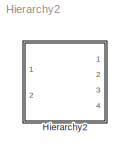
MODEL Hierarchy2
KIND model
CONFIG AbsTol = auto
CONFIG FixedStep = auto
CONFIG MaxStep = auto
CONFIG MinStep = auto
CONFIG RelTol = 1e-3
CONFIG Solver = ode45
CONFIG SolverMode = Auto
CONFIG StartTime = 0.0
CONFIG StopTime = 10.0
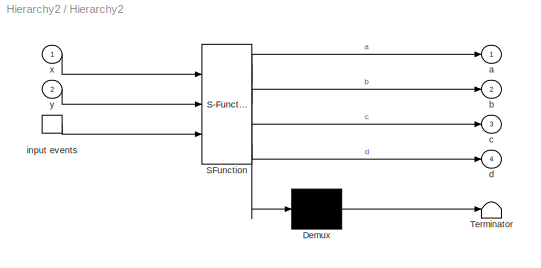
BLOCK [SubSystem] Hierarchy2
  MaskDescription = Stateflow diagram
  MaskDisplay = plot(sf('Private','sfblk','xIcon'),sf('Private','sfblk','yIcon'));text(0.5,0,sf('Private', 'sfblk', 'tIcon'),'HorizontalAl','Center','VerticalAl','Bottom');
  MaskIconFrame = off
  MaskIconOpaque = off
  MaskIconRotate = none
  MaskIconUnits = autoscale
  MaskSelfModifiable = on
  MaskType = Stateflow
  Ports = [2, 4, 0, 1]
  TreatAsAtomicUnit = off
BLOCK [Demux] Hierarchy2/ Demux 
  Outputs = 1
  Ports = [1, 1]
BLOCK [S-Function] Hierarchy2/ SFunction 
  FunctionName = sf_sfun
  PortCounts = [3 5]
  Ports = [3, 5]
  Tag = Stateflow S-Function Hierarchy2 1
BLOCK [Terminator] Hierarchy2/ Terminator 
BLOCK [TriggerPort] Hierarchy2/ input events 
  Ports = [0, 1]
  ShowOutputPort = on
  TriggerType = either
BLOCK [Outport] Hierarchy2/a
BLOCK [Outport] Hierarchy2/b
  Port = 2
BLOCK [Outport] Hierarchy2/c
  Port = 3
BLOCK [Outport] Hierarchy2/d
  Port = 4
BLOCK [Inport] Hierarchy2/x
  PortDimensions = 1
BLOCK [Inport] Hierarchy2/y
  Port = 2
  PortDimensions = 1
LINE Hierarchy2/ Demux :1 -> Hierarchy2/ Terminator :1
LINE Hierarchy2/ SFunction :1 -> Hierarchy2/ Demux :1
LINE Hierarchy2/ SFunction :2 -> Hierarchy2/a:1
LINE Hierarchy2/ SFunction :3 -> Hierarchy2/b:1
LINE Hierarchy2/ SFunction :4 -> Hierarchy2/c:1
LINE Hierarchy2/ SFunction :5 -> Hierarchy2/d:1
LINE Hierarchy2/ input events :1 -> Hierarchy2/ SFunction :3
LINE Hierarchy2/x:1 -> Hierarchy2/ SFunction :1
LINE Hierarchy2/y:1 -> Hierarchy2/ SFunction :2
CHART Hierarchy2 states=35 transitions=50
  STATE_LABEL 'A'
  STATE_LABEL 'A1'
  STATE_LABEL 'A1a/\\nen:a=x+1'
  STATE_LABEL 'A1b/\\nen:a=x+2'
  STATE_LABEL 'A2'
  STATE_LABEL 'A2a/\\nen:a=x+3'
  STATE_LABEL 'A2b/\\nen:a=x+4'
  STATE_LABEL 'A1aA'
  STATE_LABEL 'A1aA2'
  STATE_LABEL 'A1Aa2a'
  STATE_LABEL 'A1aA2b'
  STATE_LABEL 'A1aA1'
  STATE_LABEL 'A1aA1a'
  STATE_LABEL 'A1aA1b'
  STATE_LABEL 'A2aA'
  STATE_LABEL 'A2aA2'
  STATE_LABEL 'A2Aa2a'
  STATE_LABEL 'A2aA2b'
  STATE_LABEL 'A2aA1'
  STATE_LABEL 'A2aA1a'
  STATE_LABEL 'A2aA1b'
  STATE_LABEL 'A3aA'
  STATE_LABEL 'A3aA2'
  STATE_LABEL 'A3Aa2a'
  STATE_LABEL 'A3aA2b'
  STATE_LABEL 'A3aA1'
  STATE_LABEL 'A3aA1a'
  STATE_LABEL 'A3aA1b'
  STATE_LABEL 'A4aA'
  STATE_LABEL 'A4aA2'
  STATE_LABEL 'A4Aa2a'
  STATE_LABEL 'A4aA2b'
  STATE_LABEL 'A4aA1'
  STATE_LABEL 'A4aA1a'
  STATE_LABEL 'A4aA1b'
